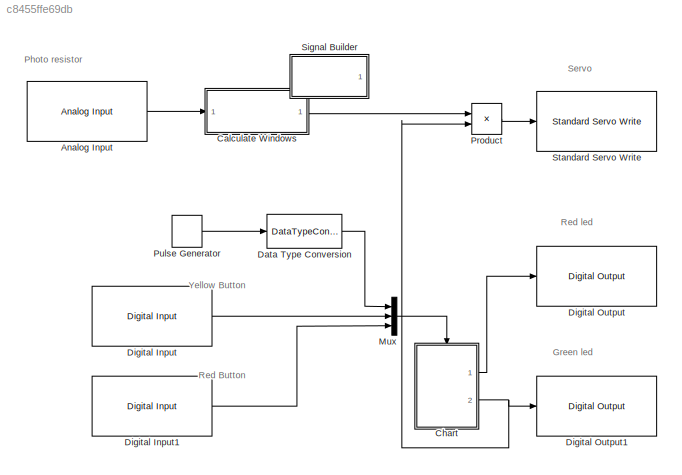
MODEL slx_c8455ffe69db
KIND model
CONFIG AbsTol = auto
CONFIG EnableMultiTasking = on
CONFIG FixedStep = auto
CONFIG MaxStep = auto
CONFIG MinStep = auto
CONFIG RelTol = 1e-3
CONFIG SampleTimeConstraint = Unconstrained
CONFIG Solver = ode45
CONFIG SolverName = ode45
CONFIG StartTime = 0.0
CONFIG StopTime = 10.0
BLOCK [Reference] Analog Input  REF=arduinolib/Analog Input
  Ports = [0, 1]
  SourceBlock = arduinolib/Analog Input
  SourceProductBaseCode = ARDUINO
  SourceProductName = Simulink Support Package for Arduino Hardware
  SourceType = Arduino Analog Input
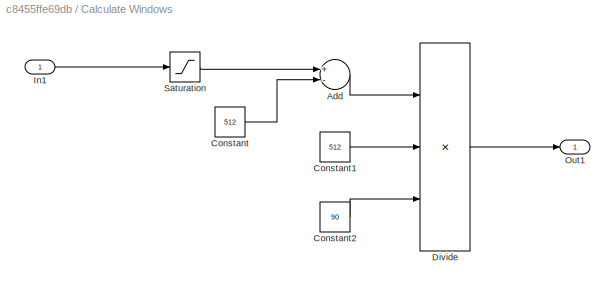
BLOCK [SubSystem] Calculate Windows
  Ports = [1, 1]
  RequestExecContextInheritance = off
BLOCK [Sum] Calculate Windows/Add
  InputSameDT = off
  Inputs = +-
  OutDataTypeStr = Inherit: Inherit via internal rule
  Ports = [2, 1]
  SaturateOnIntegerOverflow = off
BLOCK [Constant] Calculate Windows/Constant
  Value = 512
BLOCK [Constant] Calculate Windows/Constant1
  Value = 512
BLOCK [Constant] Calculate Windows/Constant2
  Value = 90
BLOCK [Product] Calculate Windows/Divide
  InputSameDT = off
  Inputs = */*
  OutDataTypeStr = Inherit: Inherit via internal rule
  Ports = [3, 1]
  RndMeth = Floor
  SaturateOnIntegerOverflow = off
BLOCK [Inport] Calculate Windows/In1
  IconDisplay = Port number
BLOCK [Outport] Calculate Windows/Out1
  IconDisplay = Port number
BLOCK [Saturate] Calculate Windows/Saturation
  InputPortMap = u0
  LowerLimit = 512
  OutDataTypeStr = Inherit: Inherit via back propagation
  Ports = [1, 1]
  UpperLimit = 1023
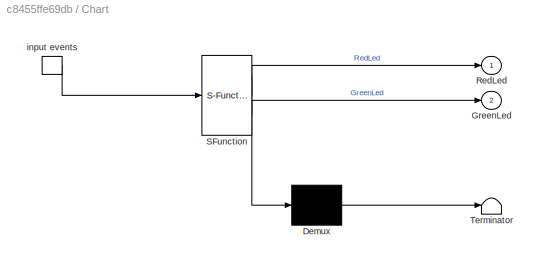
BLOCK [SubSystem] Chart
  ErrorFcn = Stateflow.Translate.translate
  PermitHierarchicalResolution = ExplicitOnly
  Ports = [0, 2, 0, 1]
  RequestExecContextInheritance = off
  SFBlockType = Chart
  TreatAsAtomicUnit = on
BLOCK [Demux] Chart/ Demux 
  Outputs = 1
  Ports = [1, 1]
BLOCK [S-Function] Chart/ SFunction 
  EnableBusSupport = on
  FunctionName = sf_sfun
  PortCounts = [1 3]
  Ports = [1, 3]
  SFcnIsStateOwnerBlock = off
  SFunctionDeploymentMode = off
  Tag = Stateflow S-Function provaArduinoWithServo 1
BLOCK [Terminator] Chart/ Terminator 
BLOCK [TriggerPort] Chart/ input events 
  Ports = [0, 1]
  ShowOutputPort = on
  StatesWhenEnabling = held
  VariantControl = Variant
BLOCK [Outport] Chart/GreenLed
  IconDisplay = Port number
  Port = 2
BLOCK [Outport] Chart/RedLed
  IconDisplay = Port number
BLOCK [DataTypeConversion] Data Type Conversion
  OutDataTypeStr = boolean
  RndMeth = Floor
  SaturateOnIntegerOverflow = off
BLOCK [Reference] Digital Input  REF=arduinolib/Digital Input
  Ports = [0, 1]
  SourceBlock = arduinolib/Digital Input
  SourceProductBaseCode = ARDUINO
  SourceProductName = Simulink Support Package for Arduino Hardware
  SourceType = Arduino Digital Input
BLOCK [Reference] Digital Input1  REF=arduinolib/Digital Input
  Ports = [0, 1]
  SourceBlock = arduinolib/Digital Input
  SourceProductBaseCode = ARDUINO
  SourceProductName = Simulink Support Package for Arduino Hardware
  SourceType = Arduino Digital Input
BLOCK [Reference] Digital Output  REF=arduinolib/Digital Output
  Ports = [1]
  SourceBlock = arduinolib/Digital Output
  SourceProductBaseCode = ARDUINO
  SourceProductName = Simulink Support Package for Arduino Hardware
  SourceType = Arduino Digital Output
BLOCK [Reference] Digital Output1  REF=arduinolib/Digital Output
  Ports = [1]
  SourceBlock = arduinolib/Digital Output
  SourceProductBaseCode = ARDUINO
  SourceProductName = Simulink Support Package for Arduino Hardware
  SourceType = Arduino Digital Output
BLOCK [Mux] Mux
  DisplayOption = bar
  Inputs = 3
  Ports = [3, 1]
BLOCK [Product] Product
  InputSameDT = off
  OutDataTypeStr = uint8
  Ports = [2, 1]
  RndMeth = Floor
  SaturateOnIntegerOverflow = off
BLOCK [DiscretePulseGenerator] Pulse Generator
  Period = 20
  Ports = [0, 1]
  PulseWidth = 5
  SampleTime = 0.1
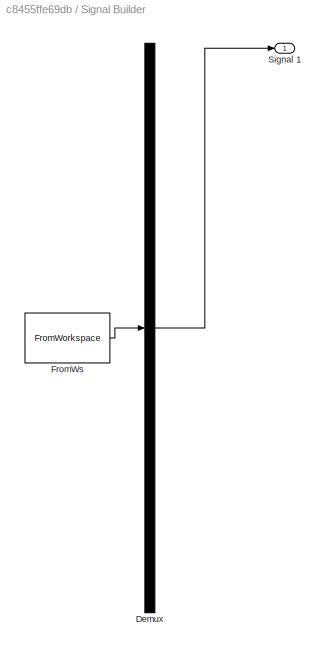
BLOCK [SubSystem] Signal Builder
  ClipboardFcn = sigbuilder_block('clipboard');
  CloseFcn = sigbuilder_block('close');
  ContinueFcn = sigbuilder_block('continue');
  CopyFcn = sigbuilder_block('copy');
  DeleteFcn = sigbuilder_block('delete');
  IOType = siggen
  LoadFcn = sigbuilder_block('load');
  MaskHideContents = on
  ModelCloseFcn = sigbuilder_block('modelClose');
  NameChangeFcn = sigbuilder_block('namechange');
  OpenFcn = sigbuilder_block('open',[437.6 199.2 550.4 400 ]);
  PauseFcn = sigbuilder_block('pause');
  Ports = [0, 1]
  PreSaveFcn = sigbuilder_block('preSave');
  RequestExecContextInheritance = off
  StartFcn = sigbuilder_block('start');
  StopFcn = sigbuilder_block('stop');
  Tag = STV Subsys
BLOCK [Demux] Signal Builder/Demux
  Outputs = 1
  Ports = [1, 1]
  Tag = STV Demux
BLOCK [FromWorkspace] Signal Builder/FromWs
  SampleTime = 0
  Tag = STV FromWs
  VariableName = tuvar
  ZeroCross = on
BLOCK [Outport] Signal Builder/Signal 1
  IconDisplay = Port number
  Tag = STV Outport
BLOCK [Reference] Standard Servo Write  REF=arduinolib/Standard Servo Write
  Ports = [1]
  SourceBlock = arduinolib/Standard Servo Write
  SourceProductBaseCode = ARDUINO
  SourceProductName = Simulink Support Package for Arduino Hardware
  SourceType = Arduino Standard Servo Write
ANNOTATION (root): Green led
ANNOTATION (root): Photo resistor
ANNOTATION (root): Red Button
ANNOTATION (root): Red led
ANNOTATION (root): Servo
ANNOTATION (root): Yellow Button
LINE Analog Input:1 -> Calculate Windows:1
LINE Calculate Windows/Add:1 -> Calculate Windows/Divide:1
LINE Calculate Windows/Constant1:1 -> Calculate Windows/Divide:2
LINE Calculate Windows/Constant2:1 -> Calculate Windows/Divide:3
LINE Calculate Windows/Constant:1 -> Calculate Windows/Add:2
LINE Calculate Windows/Divide:1 -> Calculate Windows/Out1:1
LINE Calculate Windows/In1:1 -> Calculate Windows/Saturation:1
LINE Calculate Windows/Saturation:1 -> Calculate Windows/Add:1
LINE Calculate Windows:1 -> Product:1
LINE Chart:1 -> Digital Output:1
NET Chart:2 -> Digital Output1:1, Product:2
LINE Data Type Conversion:1 -> Mux:1
LINE Digital Input1:1 -> Mux:3
LINE Digital Input:1 -> Mux:2
LINE Mux:1 -> Chart:trigger
LINE Product:1 -> Standard Servo Write:1
LINE Pulse Generator:1 -> Data Type Conversion:1
note: NET lines group one-source signal fan-out (src -> all destinations, sorted); 1:1 wires keep LINE
CHART Chart states=11 transitions=14
  STATE_LABEL 'main'
  STATE_LABEL 'uno'
  STATE_LABEL 'init\n'
  STATE_LABEL 'body\n'
  STATE_LABEL 'click/send(ON,due);\n'
  STATE_LABEL 'click/send(OFF,due);'
  STATE_LABEL 'H'
  STATE_LABEL 'due'
  STATE_LABEL 'A\nentry:\nRedLed=1;\n\n'
  STATE_LABEL 'B\nentry:\nRedLed=0;\n'
  STATE_LABEL 'YellowButton/send(GreenON,tre);'
  STATE_LABEL 'OFF'
  STATE_LABEL 'ON'
  STATE_LABEL 'YellowButton/send(GreenOFF,tre);'
  STATE_LABEL 'H'
  STATE_LABEL 'tre'
  STATE_LABEL 'C\nentry:\nGreenLed=1;\n\n\n'
  STATE_LABEL 'D\nentry:\nGreenLed=0;\n'
  STATE_LABEL 'GreenON'
  STATE_LABEL 'GreenOFF'
  STATE_LABEL 'H'
  STATE_LABEL 'uno'
  STATE_LABEL 'init\n'
  STATE_LABEL 'body\n'
  STATE_LABEL 'click/send(ON,due);\n'
  STATE_LABEL 'click/send(OFF,due);'
  STATE_LABEL 'H'
  STATE_LABEL 'init\n'
  STATE_LABEL 'body\n'
  STATE_LABEL 'due'
  STATE_LABEL 'A\nentry:\nRedLed=1;\n\n'
  STATE_LABEL 'B\nentry:\nRedLed=0;\n'
  STATE_LABEL 'YellowButton/send(GreenON,tre);'
  STATE_LABEL 'OFF'
  STATE_LABEL 'ON'
  STATE_LABEL 'YellowButton/send(GreenOFF,tre);'
  STATE_LABEL 'H'
  STATE_LABEL 'A\nentry:\nRedLed=1;\n\n'
  STATE_LABEL 'B\nentry:\nRedLed=0;\n'
  STATE_LABEL 'tre'
